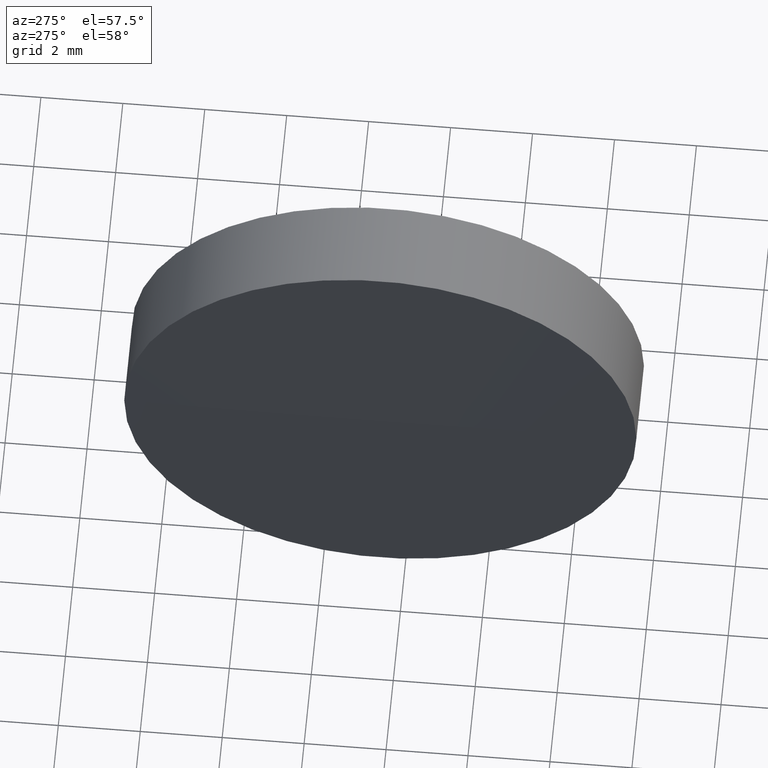
[diagram: clean part render]
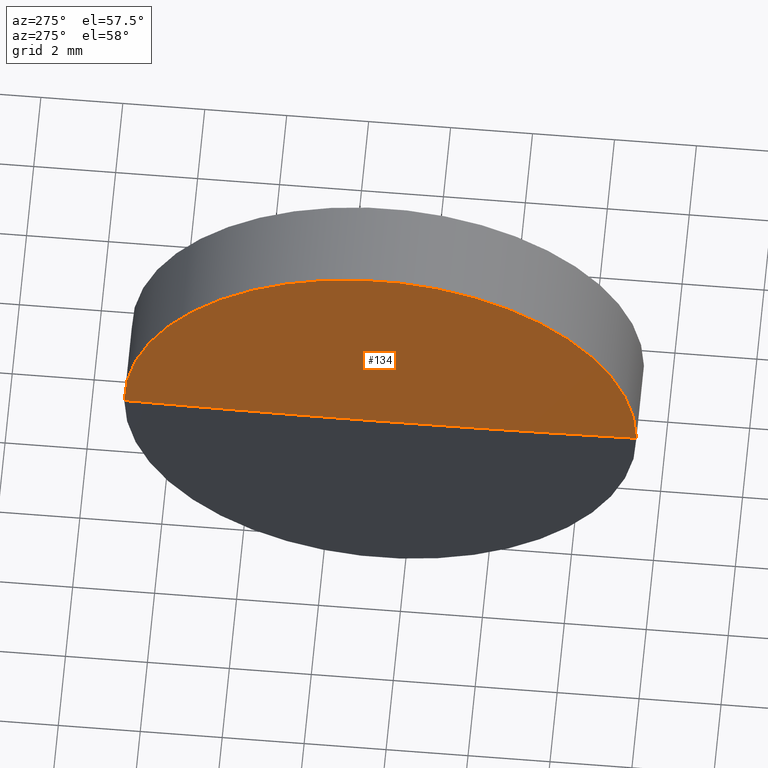
[diagram: same view with one face highlighted and labeled with its STEP entity id]
A machine part, auxiliary view. The second image highlights one B-rep face of the part: STEP entity #134.
In plain terms, the highlighted spherical surface has radius 363 mm.
Its self-contained STEP definition (entity closure, byte-faithful):
#9 = AXIS2_PLACEMENT_3D ( 'NONE', #81, #12, #70 ) ;
#11 = VERTEX_POINT ( 'NONE', #174 ) ;
#12 = DIRECTION ( 'NONE',  ( -0.0000000000000000000, 0.0000000000000000000, 1.000000000000000000 ) ) ;
#21 = SPHERICAL_SURFACE ( 'NONE', #105, 362.9999999999999400 ) ;
#26 = CIRCLE ( 'NONE', #9, 362.9999999999998900 ) ;
#37 = CARTESIAN_POINT ( 'NONE',  ( 61.34748697774439600, 32.60842023547016300, 0.0000000000000000000 ) ) ;
#38 = FACE_OUTER_BOUND ( 'NONE', #189, .T. ) ;
#45 = VERTEX_POINT ( 'NONE', #144 ) ;
#56 = AXIS2_PLACEMENT_3D ( 'NONE', #135, #96, #179 ) ;
#60 = EDGE_CURVE ( 'NONE', #45, #11, #146, .T. ) ;
#70 = DIRECTION ( 'NONE',  ( 1.000000000000000000, 0.0000000000000000000, 0.0000000000000000000 ) ) ;
#78 = ORIENTED_EDGE ( 'NONE', *, *, #60, .T. ) ;
#81 = CARTESIAN_POINT ( 'NONE',  ( 424.2936778931471100, 32.60842023547017000, 0.0000000000000000000 ) ) ;
#89 = EDGE_CURVE ( 'NONE', #45, #177, #164, .T. ) ;
#92 = DIRECTION ( 'NONE',  ( -0.0000000000000000000, 0.0000000000000000000, -1.000000000000000000 ) ) ;
#96 = DIRECTION ( 'NONE',  ( -8.496118506040342700E-032, 1.224646799147353200E-016, -1.000000000000000000 ) ) ;
#103 = ORIENTED_EDGE ( 'NONE', *, *, #190, .T. ) ;
#105 = AXIS2_PLACEMENT_3D ( 'NONE', #137, #92, #148 ) ;
#107 = ORIENTED_EDGE ( 'NONE', *, *, #89, .F. ) ;
#111 = AXIS2_PLACEMENT_3D ( 'NONE', #37, #181, #150 ) ;
#127 = CARTESIAN_POINT ( 'NONE',  ( 61.29367789314715500, 32.60842023546994300, 0.0000000000000000000 ) ) ;
#134 = ADVANCED_FACE ( 'NONE', ( #38 ), #21, .T. ) ;
#135 = CARTESIAN_POINT ( 'NONE',  ( 424.2936778931471100, 32.60842023547017000, 0.0000000000000000000 ) ) ;
#137 = CARTESIAN_POINT ( 'NONE',  ( 424.2936778931471100, 32.60842023547017000, 0.0000000000000000000 ) ) ;
#144 = CARTESIAN_POINT ( 'NONE',  ( 61.34748697774440300, 26.35842023547020900, 0.0000000000000000000 ) ) ;
#146 = CIRCLE ( 'NONE', #111, 6.249999999999953800 ) ;
#148 = DIRECTION ( 'NONE',  ( -7.646164081440473900E-016, 1.000000000000000000, 0.0000000000000000000 ) ) ;
#150 = DIRECTION ( 'NONE',  ( 1.110223024625164800E-015, -1.000000000000000000, 0.0000000000000000000 ) ) ;
#164 = CIRCLE ( 'NONE', #56, 362.9999999999999400 ) ;
#174 = CARTESIAN_POINT ( 'NONE',  ( 61.34748697774439600, 38.85842023547012000, 7.654042494670939900E-016 ) ) ;
#177 = VERTEX_POINT ( 'NONE', #127 ) ;
#179 = DIRECTION ( 'NONE',  ( 0.0000000000000000000, 1.000000000000000000, 1.224646799147353200E-016 ) ) ;
#181 = DIRECTION ( 'NONE',  ( -1.000000000000000000, -6.937607244762875000E-016, -0.0000000000000000000 ) ) ;
#189 = EDGE_LOOP ( 'NONE', ( #107, #78, #103 ) ) ;
#190 = EDGE_CURVE ( 'NONE', #11, #177, #26, .T. ) ;